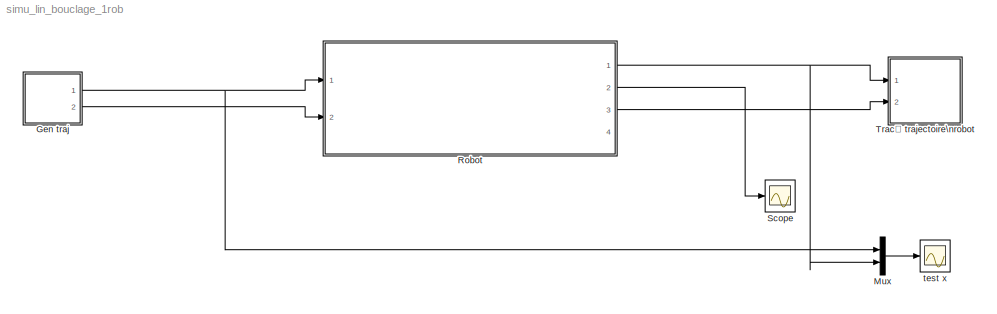
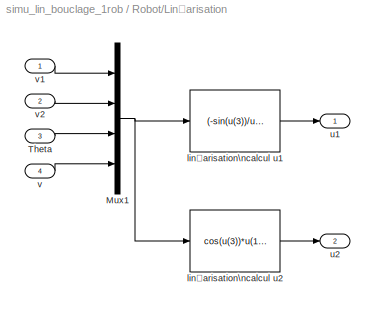
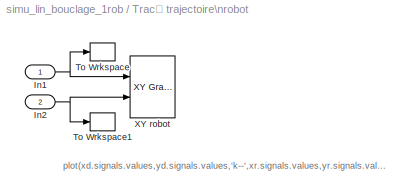
MODEL simu_lin_bouclage_1rob
KIND model
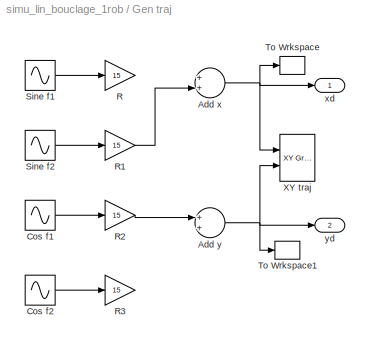
BLOCK [SubSystem] Gen traj
  FunctionWithSeparateData = off
  MaskHideContents = off
  MinAlgLoopOccurrences = off
  Opaque = off
  Ports = [0, 2]
  PropExecContextOutsideSubsystem = off
  RTWSystemCode = Auto
  RequestExecContextInheritance = off
  SID = 2
BLOCK [Sum] Gen traj/Add x
  InputSameDT = off
  OutDataType = fixdt(1, 16)
  OutDataTypeMode = Inherit via internal rule
  OutDataTypeStr = Inherit: Inherit via internal rule
  OutScaling = 2^-10
  Ports = [2, 1]
  SID = 3
  SaturateOnIntegerOverflow = off
BLOCK [Sum] Gen traj/Add y
  InputSameDT = off
  OutDataType = fixdt(1, 16)
  OutDataTypeMode = Inherit via internal rule
  OutDataTypeStr = Inherit: Inherit via internal rule
  OutScaling = 2^-10
  Ports = [2, 1]
  SID = 4
  SaturateOnIntegerOverflow = off
BLOCK [Sin] Gen traj/Cos f1
  Amplitude = 1
  Bias = 0
  Frequency = 2/2/pi
  Offset = 0
  Phase = 0
  Ports = [0, 1]
  SID = 5
  SampleTime = 0
  Samples = 10
BLOCK [Sin] Gen traj/Cos f2
  Amplitude = 1
  Bias = 0
  Frequency = 12/2/pi
  Offset = 0
  Phase = 0
  Ports = [0, 1]
  SID = 6
  SampleTime = 0
  Samples = 10
BLOCK [Gain] Gen traj/R
  Gain = 15
  OutDataType = fixdt(1, 16)
  OutDataTypeMode = Inherit via internal rule
  OutDataTypeStr = Inherit: Inherit via internal rule
  OutScaling = 2^0
  ParamDataTypeStr = Inherit: Inherit via internal rule
  ParameterDataType = fixdt(1, 16)
  ParameterDataTypeMode = Inherit via internal rule
  ParameterScaling = 2^0
  SID = 7
  SaturateOnIntegerOverflow = off
BLOCK [Gain] Gen traj/R1
  Gain = 15
  OutDataType = fixdt(1, 16)
  OutDataTypeMode = Inherit via internal rule
  OutDataTypeStr = Inherit: Inherit via internal rule
  OutScaling = 2^0
  ParamDataTypeStr = Inherit: Inherit via internal rule
  ParameterDataType = fixdt(1, 16)
  ParameterDataTypeMode = Inherit via internal rule
  ParameterScaling = 2^0
  SID = 8
  SaturateOnIntegerOverflow = off
BLOCK [Gain] Gen traj/R2
  Gain = 15
  OutDataType = fixdt(1, 16)
  OutDataTypeMode = Inherit via internal rule
  OutDataTypeStr = Inherit: Inherit via internal rule
  OutScaling = 2^0
  ParamDataTypeStr = Inherit: Inherit via internal rule
  ParameterDataType = fixdt(1, 16)
  ParameterDataTypeMode = Inherit via internal rule
  ParameterScaling = 2^0
  SID = 9
  SaturateOnIntegerOverflow = off
BLOCK [Gain] Gen traj/R3
  Gain = 15
  OutDataType = fixdt(1, 16)
  OutDataTypeMode = Inherit via internal rule
  OutDataTypeStr = Inherit: Inherit via internal rule
  OutScaling = 2^0
  ParamDataTypeStr = Inherit: Inherit via internal rule
  ParameterDataType = fixdt(1, 16)
  ParameterDataTypeMode = Inherit via internal rule
  ParameterScaling = 2^0
  SID = 10
  SaturateOnIntegerOverflow = off
BLOCK [Sin] Gen traj/Sine f1
  Amplitude = 1
  Bias = 0
  Frequency = 2/2/pi
  Offset = 0
  Phase = 0
  Ports = [0, 1]
  SID = 11
  SampleTime = 0
  Samples = 10
BLOCK [Sin] Gen traj/Sine f2
  Amplitude = 1
  Bias = 0
  Frequency = 12/2/pi
  Offset = 0
  Phase = 0
  Ports = [0, 1]
  SID = 12
  SampleTime = 0
  Samples = 10
BLOCK [ToWorkspace] Gen traj/To Wrkspace
  MaxDataPoints = inf
  Ports = [1]
  SID = 13
  SampleTime = -1
  SaveFormat = Structure
  VariableName = xd
BLOCK [ToWorkspace] Gen traj/To Wrkspace1
  MaxDataPoints = inf
  Ports = [1]
  SID = 14
  SampleTime = -1
  SaveFormat = Structure
  VariableName = yd
BLOCK [Reference] Gen traj/XY traj  REF=simulink/Sinks/XY Graph
  FunctionWithSeparateData = off
  Ports = [2]
  RTWMemSecDataConstants = Inherit from model
  RTWMemSecDataInternal = Inherit from model
  RTWMemSecDataParameters = Inherit from model
  RTWMemSecFuncExecute = Inherit from model
  RTWMemSecFuncInitTerm = Inherit from model
  SID = 15
  ShowPortLabels = FromPortIcon
  SourceBlock = simulink/Sinks/XY Graph
  SourceType = XY scope.
  SystemSampleTime = -1
  st = -1
  xmax = 20
  xmin = -20
  ymax = 20
  ymin = -20
BLOCK [Outport] Gen traj/xd
  IconDisplay = Port number
  SID = 16
BLOCK [Outport] Gen traj/yd
  IconDisplay = Port number
  Port = 2
  SID = 17
BLOCK [Mux] Mux
  DisplayOption = bar
  Inputs = 2
  Ports = [2, 1]
  SID = 67
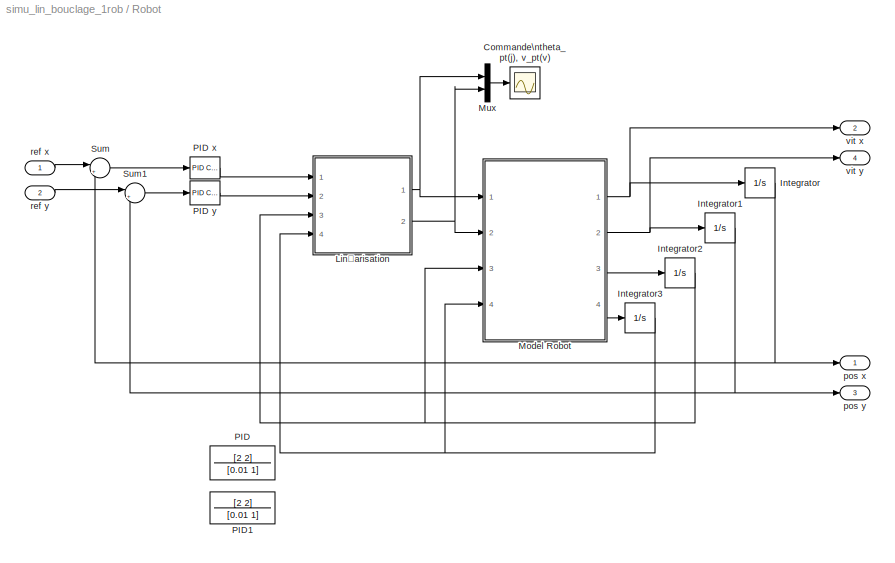
BLOCK [SubSystem] Robot
  FunctionWithSeparateData = off
  MaskHideContents = off
  MinAlgLoopOccurrences = off
  Opaque = off
  Ports = [2, 4]
  PropExecContextOutsideSubsystem = off
  RTWSystemCode = Auto
  RequestExecContextInheritance = off
  SID = 57
BLOCK [Scope] Robot/Commande\ntheta_pt(j), v_pt(v)
  DataFormat = StructureWithTime
  Floating = off
  NumInputPorts = 1
  Ports = [1]
  SID = 1
  SampleTime = 0
BLOCK [Integrator] Robot/Integrator
  Ports = [1, 1]
  SID = 18
BLOCK [Integrator] Robot/Integrator1
  Ports = [1, 1]
  SID = 19
BLOCK [Integrator] Robot/Integrator2
  InitialCondition = 1
  Ports = [1, 1]
  SID = 20
BLOCK [Integrator] Robot/Integrator3
  InitialCondition = 2
  Ports = [1, 1]
  SID = 21
BLOCK [SubSystem] Robot/Linéarisation
  FunctionWithSeparateData = off
  MaskHideContents = off
  MinAlgLoopOccurrences = off
  Opaque = off
  Ports = [4, 2]
  PropExecContextOutsideSubsystem = off
  RTWSystemCode = Auto
  RequestExecContextInheritance = off
  SID = 22
BLOCK [Mux] Robot/Linéarisation/Mux1
  DisplayOption = bar
  Ports = [4, 1]
  SID = 27
BLOCK [Inport] Robot/Linéarisation/Theta
  IconDisplay = Port number
  Port = 3
  SID = 25
BLOCK [Fcn] Robot/Linéarisation/linéarisation\ncalcul u1
  Expr = (-sin(u(3))/u(4))*u(1)+(cos(u(3))/u(4))*u(2)
  SID = 28
BLOCK [Fcn] Robot/Linéarisation/linéarisation\ncalcul u2
  Expr = cos(u(3))*u(1)+sin(u(3))*u(2)
  SID = 29
BLOCK [Outport] Robot/Linéarisation/u1
  IconDisplay = Port number
  SID = 30
BLOCK [Outport] Robot/Linéarisation/u2
  IconDisplay = Port number
  Port = 2
  SID = 31
BLOCK [Inport] Robot/Linéarisation/v
  IconDisplay = Port number
  Port = 4
  SID = 26
BLOCK [Inport] Robot/Linéarisation/v1
  IconDisplay = Port number
  SID = 23
BLOCK [Inport] Robot/Linéarisation/v2
  IconDisplay = Port number
  Port = 2
  SID = 24
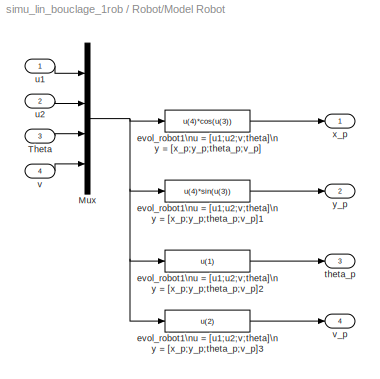
BLOCK [SubSystem] Robot/Model Robot
  FunctionWithSeparateData = off
  MaskHideContents = off
  MinAlgLoopOccurrences = off
  Opaque = off
  Ports = [4, 4]
  PropExecContextOutsideSubsystem = off
  RTWSystemCode = Auto
  RequestExecContextInheritance = off
  SID = 32
BLOCK [Mux] Robot/Model Robot/Mux
  DisplayOption = bar
  Ports = [4, 1]
  SID = 37
BLOCK [Inport] Robot/Model Robot/Theta
  IconDisplay = Port number
  Port = 3
  SID = 35
BLOCK [Fcn] Robot/Model Robot/evol_robot1\nu = [u1;u2;v;theta]\ny = [x_p;y_p;theta_p;v_p]
  Expr = u(4)*cos(u(3))
  SID = 38
BLOCK [Fcn] Robot/Model Robot/evol_robot1\nu = [u1;u2;v;theta]\ny = [x_p;y_p;theta_p;v_p]1
  Expr = u(4)*sin(u(3))
  SID = 39
BLOCK [Fcn] Robot/Model Robot/evol_robot1\nu = [u1;u2;v;theta]\ny = [x_p;y_p;theta_p;v_p]2
  Expr = u(1)
  SID = 40
BLOCK [Fcn] Robot/Model Robot/evol_robot1\nu = [u1;u2;v;theta]\ny = [x_p;y_p;theta_p;v_p]3
  Expr = u(2)
  SID = 41
BLOCK [Outport] Robot/Model Robot/theta_p
  IconDisplay = Port number
  Port = 3
  SID = 44
BLOCK [Inport] Robot/Model Robot/u1
  IconDisplay = Port number
  SID = 33
BLOCK [Inport] Robot/Model Robot/u2
  IconDisplay = Port number
  Port = 2
  SID = 34
BLOCK [Inport] Robot/Model Robot/v
  IconDisplay = Port number
  Port = 4
  SID = 36
BLOCK [Outport] Robot/Model Robot/v_p
  IconDisplay = Port number
  Port = 4
  SID = 45
BLOCK [Outport] Robot/Model Robot/x_p
  IconDisplay = Port number
  SID = 42
BLOCK [Outport] Robot/Model Robot/y_p
  IconDisplay = Port number
  Port = 2
  SID = 43
BLOCK [Mux] Robot/Mux
  DisplayOption = bar
  Inputs = 2
  Ports = [2, 1]
  SID = 46
BLOCK [TransferFcn] Robot/PID
  Denominator = [0.01 1]
  Numerator = [2 2]
  SID = 72
BLOCK [Reference] Robot/PID x  REF=simulink_need_slupdate/PID Controller
  D = 2
  FunctionWithSeparateData = off
  I = 0
  P = 2
  Ports = [1, 1]
  RTWMemSecDataConstants = Inherit from model
  RTWMemSecDataInternal = Inherit from model
  RTWMemSecDataParameters = Inherit from model
  RTWMemSecFuncExecute = Inherit from model
  RTWMemSecFuncInitTerm = Inherit from model
  SID = 68
  ShowPortLabels = FromPortIcon
  SourceBlock = simulink_need_slupdate/PID Controller
  SourceType = PID Controller
  SystemSampleTime = -1
BLOCK [Reference] Robot/PID y  REF=simulink_need_slupdate/PID Controller
  D = 2
  FunctionWithSeparateData = off
  I = 0
  P = 2
  Ports = [1, 1]
  RTWMemSecDataConstants = Inherit from model
  RTWMemSecDataInternal = Inherit from model
  RTWMemSecDataParameters = Inherit from model
  RTWMemSecFuncExecute = Inherit from model
  RTWMemSecFuncInitTerm = Inherit from model
  SID = 69
  ShowPortLabels = FromPortIcon
  SourceBlock = simulink_need_slupdate/PID Controller
  SourceType = PID Controller
  SystemSampleTime = -1
BLOCK [TransferFcn] Robot/PID1
  Denominator = [0.01 1]
  Numerator = [2 2]
  SID = 73
BLOCK [Sum] Robot/Sum
  IconShape = round
  InputSameDT = off
  Inputs = |+-
  OutDataType = fixdt(1, 16)
  OutDataTypeMode = Inherit via internal rule
  OutDataTypeStr = Inherit: Inherit via internal rule
  OutScaling = 2^0
  Ports = [2, 1]
  SID = 49
  SaturateOnIntegerOverflow = off
BLOCK [Sum] Robot/Sum1
  IconShape = round
  InputSameDT = off
  Inputs = |+-
  OutDataType = fixdt(1, 16)
  OutDataTypeMode = Inherit via internal rule
  OutDataTypeStr = Inherit: Inherit via internal rule
  OutScaling = 2^0
  Ports = [2, 1]
  SID = 50
  SaturateOnIntegerOverflow = off
BLOCK [Outport] Robot/pos x
  IconDisplay = Port number
  SID = 60
BLOCK [Outport] Robot/pos y
  IconDisplay = Port number
  Port = 3
  SID = 61
BLOCK [Inport] Robot/ref x
  IconDisplay = Port number
  SID = 58
BLOCK [Inport] Robot/ref y
  IconDisplay = Port number
  Port = 2
  SID = 59
BLOCK [Outport] Robot/vit x
  IconDisplay = Port number
  Port = 2
  SID = 62
BLOCK [Outport] Robot/vit y
  IconDisplay = Port number
  Port = 4
  SID = 63
BLOCK [Scope] Scope
  DataFormat = StructureWithTime
  Floating = off
  NumInputPorts = 1
  Ports = [1]
  SID = 64
  SampleTime = 0
  SaveName = ScopeData1
BLOCK [SubSystem] Tracé trajectoire\nrobot
  FunctionWithSeparateData = off
  MaskHideContents = off
  MinAlgLoopOccurrences = off
  Opaque = off
  Ports = [2]
  PropExecContextOutsideSubsystem = off
  RTWSystemCode = Auto
  RequestExecContextInheritance = off
  SID = 51
BLOCK [Inport] Tracé trajectoire\nrobot/In1
  IconDisplay = Port number
  OutDataType = sfix(16)
  OutScaling = 2^0
  SID = 52
BLOCK [Inport] Tracé trajectoire\nrobot/In2
  IconDisplay = Port number
  OutDataType = sfix(16)
  OutScaling = 2^0
  Port = 2
  SID = 53
BLOCK [ToWorkspace] Tracé trajectoire\nrobot/To Wrkspace
  MaxDataPoints = inf
  Ports = [1]
  SID = 54
  SampleTime = -1
  SaveFormat = Structure
  VariableName = xr
BLOCK [ToWorkspace] Tracé trajectoire\nrobot/To Wrkspace1
  MaxDataPoints = inf
  Ports = [1]
  SID = 55
  SampleTime = -1
  SaveFormat = Structure
  VariableName = yr
BLOCK [Reference] Tracé trajectoire\nrobot/XY robot  REF=simulink/Sinks/XY Graph
  FunctionWithSeparateData = off
  Ports = [2]
  RTWMemSecDataConstants = Inherit from model
  RTWMemSecDataInternal = Inherit from model
  RTWMemSecDataParameters = Inherit from model
  RTWMemSecFuncExecute = Inherit from model
  RTWMemSecFuncInitTerm = Inherit from model
  SID = 56
  ShowPortLabels = FromPortIcon
  SourceBlock = simulink/Sinks/XY Graph
  SourceType = XY scope.
  SystemSampleTime = -1
  st = -1
  xmax = 20
  xmin = -20
  ymax = 20
  ymin = -20
BLOCK [Scope] test x
  DataFormat = StructureWithTime
  Floating = off
  NumInputPorts = 1
  Ports = [1]
  SID = 66
  SampleTime = 0
  SaveName = ScopeData2
  YMax = 15
  YMin = 0
ANNOTATION Tracé trajectoire\nrobot: plot(xd.signals.values,yd.signals.values,'k--',xr.signals.values,yr.signals.values,'r')
NET Gen traj/Add x:1 -> Gen traj/To Wrkspace:1, Gen traj/XY traj:1, Gen traj/xd:1
NET Gen traj/Add y:1 -> Gen traj/To Wrkspace1:1, Gen traj/XY traj:2, Gen traj/yd:1
LINE Gen traj/Cos f1:1 -> Gen traj/R2:1
LINE Gen traj/Cos f2:1 -> Gen traj/R3:1
LINE Gen traj/R1:1 -> Gen traj/Add x:2
LINE Gen traj/R2:1 -> Gen traj/Add y:1
LINE Gen traj/Sine f1:1 -> Gen traj/R:1
LINE Gen traj/Sine f2:1 -> Gen traj/R1:1
NET Gen traj:1 -> Mux:1, Robot:1
LINE Gen traj:2 -> Robot:2
LINE Mux:1 -> test x:1
NET Robot/Integrator1:1 -> Robot/Sum1:2, Robot/pos y:1
NET Robot/Integrator2:1 -> Robot/Linéarisation:3, Robot/Model Robot:3
NET Robot/Integrator3:1 -> Robot/Linéarisation:4, Robot/Model Robot:4
NET Robot/Integrator:1 -> Robot/Sum:2, Robot/pos x:1
NET Robot/Linéarisation/Mux1:1 -> Robot/Linéarisation/linéarisation\ncalcul u1:1, Robot/Linéarisation/linéarisation\ncalcul u2:1
LINE Robot/Linéarisation/Theta:1 -> Robot/Linéarisation/Mux1:3
LINE Robot/Linéarisation/linéarisation\ncalcul u1:1 -> Robot/Linéarisation/u1:1
LINE Robot/Linéarisation/linéarisation\ncalcul u2:1 -> Robot/Linéarisation/u2:1
LINE Robot/Linéarisation/v1:1 -> Robot/Linéarisation/Mux1:1
LINE Robot/Linéarisation/v2:1 -> Robot/Linéarisation/Mux1:2
LINE Robot/Linéarisation/v:1 -> Robot/Linéarisation/Mux1:4
NET Robot/Linéarisation:1 -> Robot/Model Robot:1, Robot/Mux:1
NET Robot/Linéarisation:2 -> Robot/Model Robot:2, Robot/Mux:2
NET Robot/Model Robot/Mux:1 -> Robot/Model Robot/evol_robot1\nu = [u1;u2;v;theta]\ny = [x_p;y_p;theta_p;v_p]1:1, Robot/Model Robot/evol_robot1\nu = [u1;u2;v;theta]\ny = [x_p;y_p;theta_p;v_p]2:1, Robot/Model Robot/evol_robot1\nu = [u1;u2;v;theta]\ny = [x_p;y_p;theta_p;v_p]3:1, Robot/Model Robot/evol_robot1\nu = [u1;u2;v;theta]\ny = [x_p;y_p;theta_p;v_p]:1
LINE Robot/Model Robot/Theta:1 -> Robot/Model Robot/Mux:3
LINE Robot/Model Robot/evol_robot1\nu = [u1;u2;v;theta]\ny = [x_p;y_p;theta_p;v_p]1:1 -> Robot/Model Robot/y_p:1
LINE Robot/Model Robot/evol_robot1\nu = [u1;u2;v;theta]\ny = [x_p;y_p;theta_p;v_p]2:1 -> Robot/Model Robot/theta_p:1
LINE Robot/Model Robot/evol_robot1\nu = [u1;u2;v;theta]\ny = [x_p;y_p;theta_p;v_p]3:1 -> Robot/Model Robot/v_p:1
LINE Robot/Model Robot/evol_robot1\nu = [u1;u2;v;theta]\ny = [x_p;y_p;theta_p;v_p]:1 -> Robot/Model Robot/x_p:1
LINE Robot/Model Robot/u1:1 -> Robot/Model Robot/Mux:1
LINE Robot/Model Robot/u2:1 -> Robot/Model Robot/Mux:2
LINE Robot/Model Robot/v:1 -> Robot/Model Robot/Mux:4
NET Robot/Model Robot:1 -> Robot/Integrator:1, Robot/vit x:1
NET Robot/Model Robot:2 -> Robot/Integrator1:1, Robot/vit y:1
LINE Robot/Model Robot:3 -> Robot/Integrator2:1
LINE Robot/Model Robot:4 -> Robot/Integrator3:1
LINE Robot/Mux:1 -> Robot/Commande\ntheta_pt(j), v_pt(v):1
LINE Robot/PID x:1 -> Robot/Linéarisation:1
LINE Robot/PID y:1 -> Robot/Linéarisation:2
LINE Robot/Sum1:1 -> Robot/PID y:1
LINE Robot/Sum:1 -> Robot/PID x:1
LINE Robot/ref x:1 -> Robot/Sum:1
LINE Robot/ref y:1 -> Robot/Sum1:1
NET Robot:1 -> Mux:2, Tracé trajectoire\nrobot:1
LINE Robot:2 -> Scope:1
LINE Robot:3 -> Tracé trajectoire\nrobot:2
NET Tracé trajectoire\nrobot/In1:1 -> Tracé trajectoire\nrobot/To Wrkspace:1, Tracé trajectoire\nrobot/XY robot:1
NET Tracé trajectoire\nrobot/In2:1 -> Tracé trajectoire\nrobot/To Wrkspace1:1, Tracé trajectoire\nrobot/XY robot:2
note: NET lines group one-source signal fan-out (src -> all destinations, sorted); 1:1 wires keep LINE
